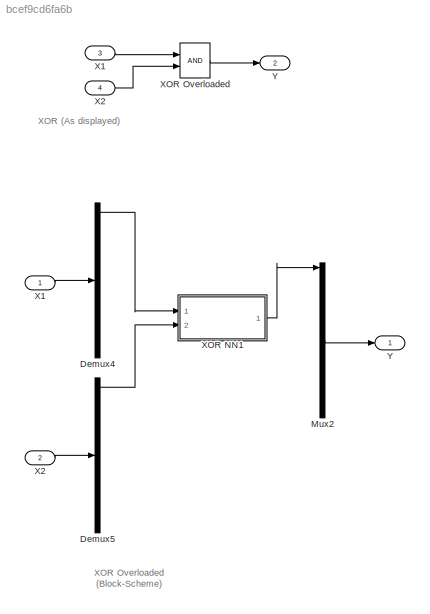
MODEL slx_bcef9cd6fa6b
KIND model
CONFIG AbsTol = auto
CONFIG EnableMultiTasking = off
CONFIG FixedStep = auto
CONFIG MaxStep = auto
CONFIG MinStep = auto
CONFIG RelTol = 1e-3
CONFIG SampleTimeConstraint = Unconstrained
CONFIG Solver = VariableStepAuto
CONFIG SolverName = VariableStepAuto
CONFIG StartTime = 0.0
CONFIG StopTime = 10.0
BLOCK [Demux] Demux4
  DisplayOption = bar
  Outputs = 32
  Ports = [1, 32]
BLOCK [Demux] Demux5
  DisplayOption = bar
  Outputs = 32
  Ports = [1, 32]
BLOCK [Mux] Mux2
  DisplayOption = bar
  Inputs = 32
  Ports = [32, 1]
BLOCK [Inport] X1
  IconDisplay = Port number
  Port = 3
BLOCK [Inport] X1   
  IconDisplay = Port number
BLOCK [Inport] X2
  IconDisplay = Port number
  Port = 4
BLOCK [Inport] X2  
  IconDisplay = Port number
  Port = 2
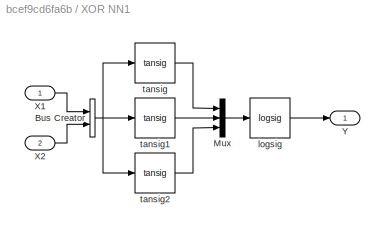
BLOCK [SubSystem] XOR NN1
  Ports = [2, 1]
  RequestExecContextInheritance = off
BLOCK [BusCreator] XOR NN1/Bus Creator
  DisplayOption = bar
  InheritFromInputs = on
  Inputs = 2
  Ports = [2, 1]
BLOCK [Mux] XOR NN1/Mux
  DisplayOption = bar
  Inputs = 3
  Ports = [3, 1]
BLOCK [Inport] XOR NN1/X1
  IconDisplay = Port number
BLOCK [Inport] XOR NN1/X2
  IconDisplay = Port number
  Port = 2
BLOCK [Outport] XOR NN1/Y
  IconDisplay = Port number
BLOCK [Reference] XOR NN1/logsig  REF=neural/Transfer Functions/logsig
  Ports = [1, 1]
  SourceBlock = neural/Transfer Functions/logsig
  SourceType = LOGSIG
BLOCK [Reference] XOR NN1/tansig  REF=neural/Transfer Functions/tansig
  Ports = [1, 1]
  SourceBlock = neural/Transfer Functions/tansig
  SourceType = TANSIG
BLOCK [Reference] XOR NN1/tansig1  REF=neural/Transfer Functions/tansig
  Ports = [1, 1]
  SourceBlock = neural/Transfer Functions/tansig
  SourceType = TANSIG
BLOCK [Reference] XOR NN1/tansig2  REF=neural/Transfer Functions/tansig
  Ports = [1, 1]
  SourceBlock = neural/Transfer Functions/tansig
  SourceType = TANSIG
BLOCK [Logic] XOR Overloaded
  AllPortsSameDT = off
  OutDataTypeStr = boolean
  Ports = [2, 1]
BLOCK [Outport] Y
  IconDisplay = Port number
  Port = 2
BLOCK [Outport] Y  
  IconDisplay = Port number
ANNOTATION (root): XOR (As displayed)
ANNOTATION (root): XOR Overloaded (Block-Scheme)
LINE Demux4:2 -> XOR NN1:1
LINE Demux5:2 -> XOR NN1:2
LINE Mux2:1 -> Y  :1
LINE X1   :1 -> Demux4:1
LINE X1:1 -> XOR Overloaded:1
LINE X2  :1 -> Demux5:1
LINE X2:1 -> XOR Overloaded:2
NET XOR NN1/Bus Creator:1 -> XOR NN1/tansig1:1, XOR NN1/tansig2:1, XOR NN1/tansig:1
LINE XOR NN1/Mux:1 -> XOR NN1/logsig:1
LINE XOR NN1/X1:1 -> XOR NN1/Bus Creator:1
LINE XOR NN1/X2:1 -> XOR NN1/Bus Creator:2
LINE XOR NN1/logsig:1 -> XOR NN1/Y:1
LINE XOR NN1/tansig1:1 -> XOR NN1/Mux:2
LINE XOR NN1/tansig2:1 -> XOR NN1/Mux:3
LINE XOR NN1/tansig:1 -> XOR NN1/Mux:1
LINE XOR NN1:1 -> Mux2:1
LINE XOR Overloaded:1 -> Y:1
note: NET lines group one-source signal fan-out (src -> all destinations, sorted); 1:1 wires keep LINE
